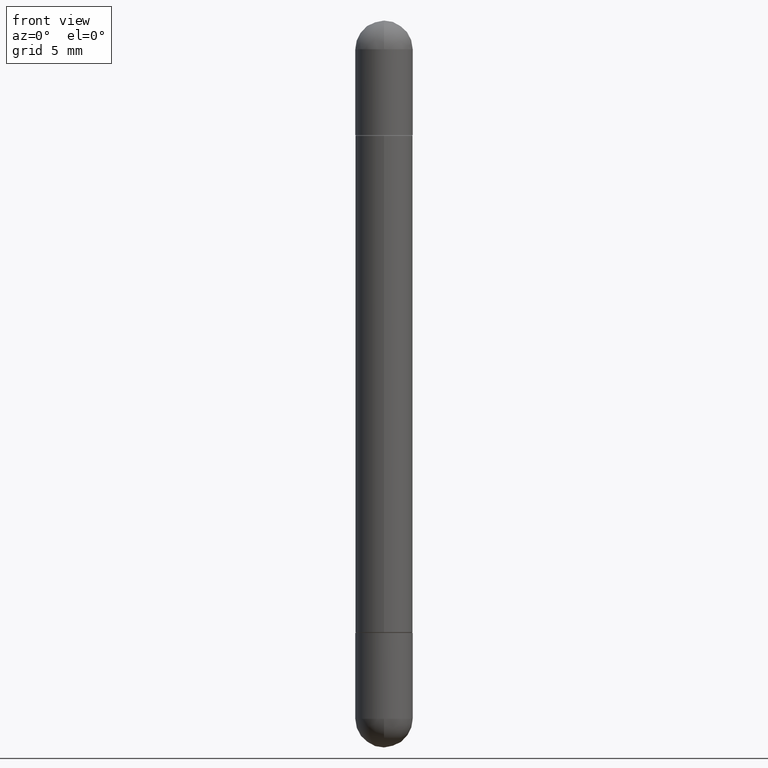
[diagram: clean part render]
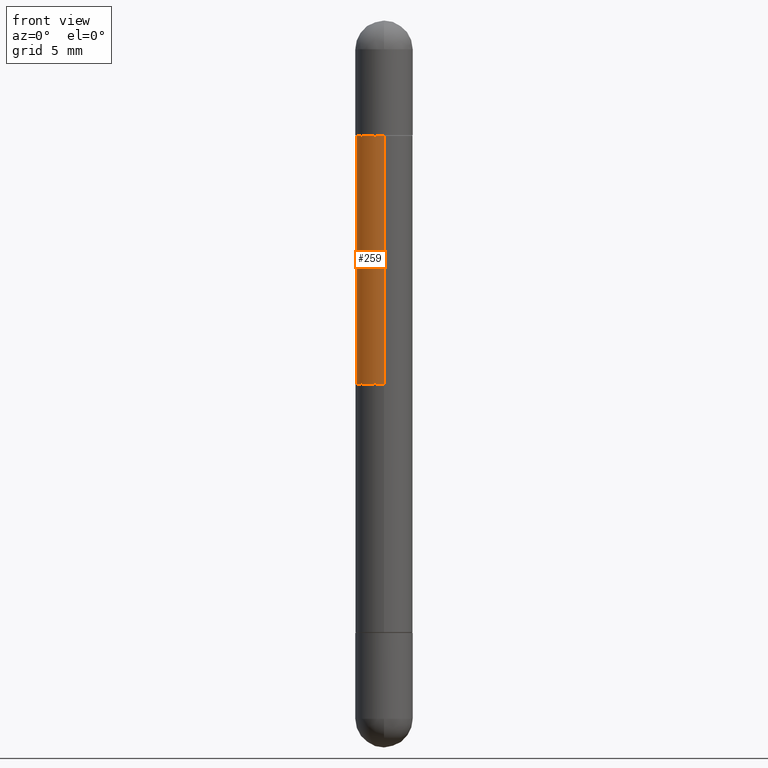
[diagram: same view with one face highlighted and labeled with its STEP entity id]
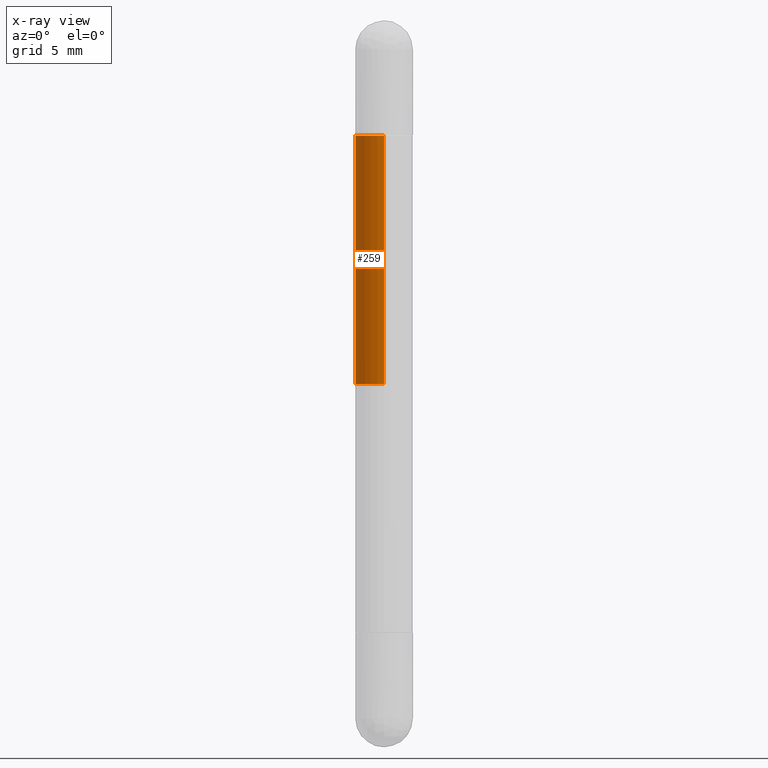
[diagram: x-ray of the same camera — body ghosted, the highlighted face saturated]
A machine part, front view. The second image highlights one B-rep face of the part: STEP entity #259.
The next image is the same camera in x-ray: the body ghosted, the highlighted face saturated — about 0% of this face is hidden behind the body in this view.
In plain terms, the highlighted cylindrical surface (edge-blend (fillet) strip) has radius 1.4999 mm, axis along (-0, 0, -1).
Its self-contained STEP definition (entity closure, byte-faithful):
#17 = CARTESIAN_POINT ( 'NONE',  ( 1.832588647221437396E-29, -2.607140258145642371E-15, -0.7480500000000001037 ) ) ;
#19 = DIRECTION ( 'NONE',  ( 2.449821064396012218E-29, -3.485248657370018036E-15, 1.000000000000000000 ) ) ;
#22 = CARTESIAN_POINT ( 'NONE',  ( -4.123439461173745750E-16, -0.05905000000000008159, -1.496100000000000430 ) ) ;
#29 = AXIS2_PLACEMENT_3D ( 'NONE', #467, #19, #473 ) ;
#37 = CYLINDRICAL_SURFACE ( 'NONE', #708, 0.05905000000000008159 ) ;
#59 = EDGE_CURVE ( 'NONE', #353, #776, #229, .T. ) ;
#91 = EDGE_CURVE ( 'NONE', #330, #307, #363, .T. ) ;
#117 = ORIENTED_EDGE ( 'NONE', *, *, #552, .F. ) ;
#119 = CARTESIAN_POINT ( 'NONE',  ( 4.051124067684407678E-16, 0.05904999999999576560, -0.2371999999999999387 ) ) ;
#229 = CIRCLE ( 'NONE', #29, 0.05905000000000014404 ) ;
#233 = FACE_OUTER_BOUND ( 'NONE', #635, .T. ) ;
#244 = LINE ( 'NONE', #557, #257 ) ;
#257 = VECTOR ( 'NONE', #485, 39.37007874015748143 ) ;
#259 = ADVANCED_FACE ( 'NONE', ( #233 ), #37, .T. ) ;
#273 = ORIENTED_EDGE ( 'NONE', *, *, #91, .F. ) ;
#302 = ORIENTED_EDGE ( 'NONE', *, *, #750, .T. ) ;
#307 = VERTEX_POINT ( 'NONE', #739 ) ;
#330 = VERTEX_POINT ( 'NONE', #801 ) ;
#337 = DIRECTION ( 'NONE',  ( -2.449821064396012218E-29, 3.485248657370018430E-15, -1.000000000000000000 ) ) ;
#353 = VERTEX_POINT ( 'NONE', #119 ) ;
#363 = CIRCLE ( 'NONE', #707, 0.05905000000000008159 ) ;
#373 = DIRECTION ( 'NONE',  ( -6.982962677686265922E-15, -1.000000000000000000, -4.626330217890363025E-15 ) ) ;
#419 = LINE ( 'NONE', #22, #796 ) ;
#426 = DIRECTION ( 'NONE',  ( -1.000000000000000000, 0.000000000000000000, 0.000000000000000000 ) ) ;
#428 = CARTESIAN_POINT ( 'NONE',  ( 0.000000000000000000, 0.000000000000000000, -1.496100000000000207 ) ) ;
#438 = CARTESIAN_POINT ( 'NONE',  ( -4.123439461173441546E-16, -0.05905000000000452248, -0.2372000000000003272 ) ) ;
#467 = CARTESIAN_POINT ( 'NONE',  ( 3.084079737968140316E-29, -4.387579534763115600E-15, -0.2372000000000001330 ) ) ;
#473 = DIRECTION ( 'NONE',  ( -6.982962677686265922E-15, -1.000000000000000000, -3.469747663417768719E-15 ) ) ;
#485 = DIRECTION ( 'NONE',  ( -2.449821064396012218E-29, 3.485248657370018430E-15, -1.000000000000000000 ) ) ;
#538 = ORIENTED_EDGE ( 'NONE', *, *, #59, .F. ) ;
#552 = EDGE_CURVE ( 'NONE', #776, #330, #419, .T. ) ;
#557 = CARTESIAN_POINT ( 'NONE',  ( 4.051124067684094599E-16, 0.05905000000000008159, -1.496099999999999985 ) ) ;
#599 = DIRECTION ( 'NONE',  ( -0.000000000000000000, -0.000000000000000000, -1.000000000000000000 ) ) ;
#635 = EDGE_LOOP ( 'NONE', ( #538, #302, #273, #117 ) ) ;
#707 = AXIS2_PLACEMENT_3D ( 'NONE', #17, #599, #426 ) ;
#708 = AXIS2_PLACEMENT_3D ( 'NONE', #428, #793, #373 ) ;
#739 = CARTESIAN_POINT ( 'NONE',  ( 4.051124067684401762E-16, 0.05904999999999747257, -0.7480500000000001037 ) ) ;
#750 = EDGE_CURVE ( 'NONE', #353, #307, #244, .T. ) ;
#776 = VERTEX_POINT ( 'NONE', #438 ) ;
#793 = DIRECTION ( 'NONE',  ( -2.449821064396012218E-29, 3.485248657370018036E-15, -1.000000000000000000 ) ) ;
#796 = VECTOR ( 'NONE', #337, 39.37007874015748143 ) ;
#801 = CARTESIAN_POINT ( 'NONE',  ( -4.123439461173500217E-16, -0.05905000000000269061, -0.7480500000000001037 ) ) ;